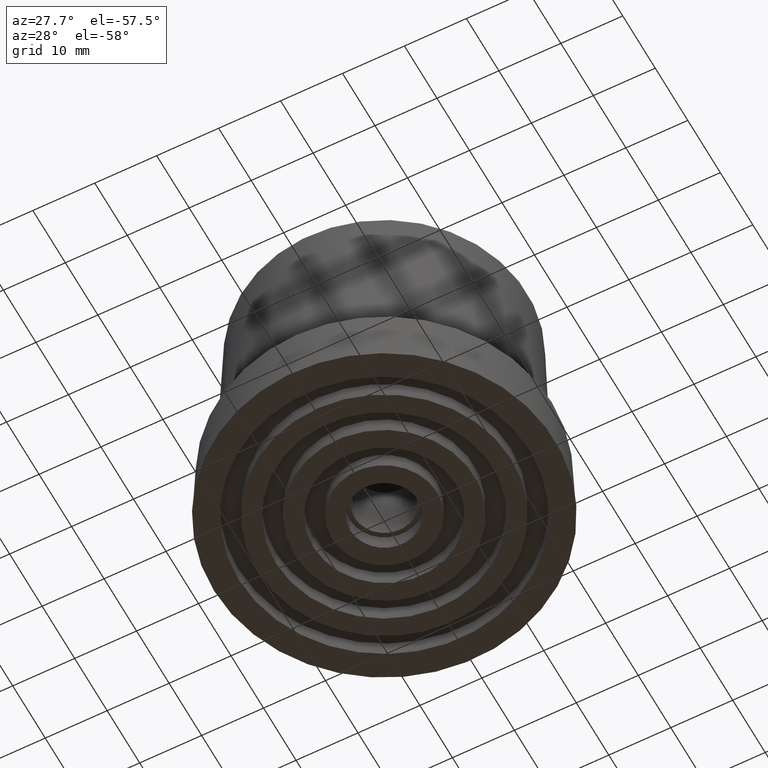
[diagram: clean part render]
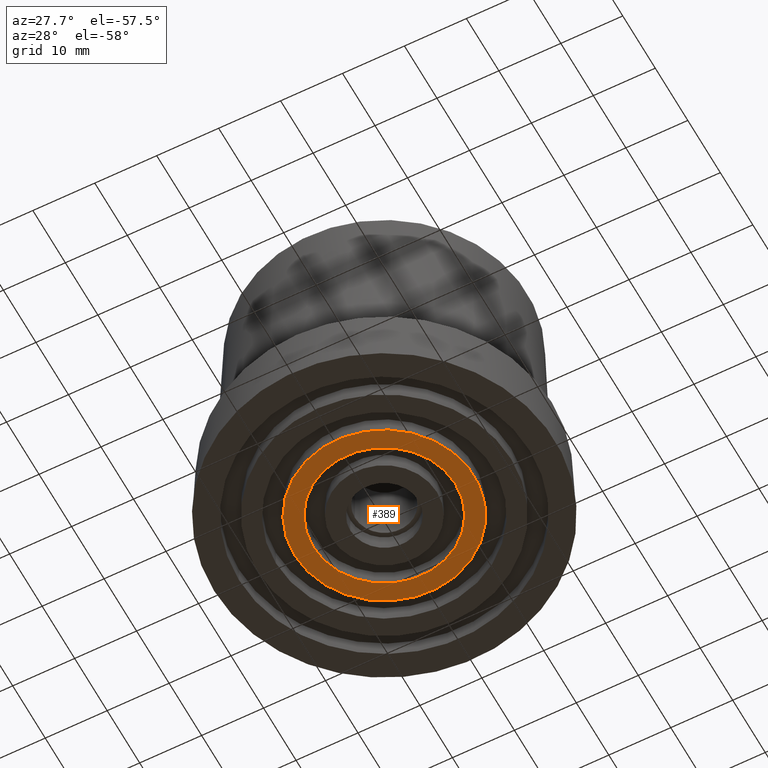
[diagram: same view with one face highlighted and labeled with its STEP entity id]
A machine part, auxiliary view. The second image highlights one B-rep face of the part: STEP entity #389.
In plain terms, the highlighted planar face has unit normal (0, 0, 1).
Its self-contained STEP definition (entity closure, byte-faithful):
#23=PLANE('',#444);
#49=FACE_BOUND('',#135,.T.);
#84=FACE_OUTER_BOUND('',#134,.T.);
#134=EDGE_LOOP('',(#314));
#135=EDGE_LOOP('',(#315));
#186=CIRCLE('',#425,11.5);
#188=CIRCLE('',#429,14.5);
#222=VERTEX_POINT('',#653);
#224=VERTEX_POINT('',#659);
#258=EDGE_CURVE('',#222,#222,#186,.T.);
#260=EDGE_CURVE('',#224,#224,#188,.T.);
#314=ORIENTED_EDGE('',*,*,#260,.T.);
#315=ORIENTED_EDGE('',*,*,#258,.T.);
#389=ADVANCED_FACE('',(#84,#49),#23,.F.);
#425=AXIS2_PLACEMENT_3D('',#654,#510,#511);
#429=AXIS2_PLACEMENT_3D('',#660,#518,#519);
#444=AXIS2_PLACEMENT_3D('',#682,#548,#549);
#510=DIRECTION('center_axis',(0.,0.,1.));
#511=DIRECTION('ref_axis',(1.,0.,0.));
#518=DIRECTION('center_axis',(0.,0.,-1.));
#519=DIRECTION('ref_axis',(1.,0.,0.));
#548=DIRECTION('center_axis',(0.,0.,1.));
#549=DIRECTION('ref_axis',(1.,0.,0.));
#653=CARTESIAN_POINT('',(-11.5,1.40834381901946E-15,0.));
#654=CARTESIAN_POINT('Origin',(0.,0.,0.));
#659=CARTESIAN_POINT('',(-14.5,1.77573785876366E-15,0.));
#660=CARTESIAN_POINT('Origin',(0.,0.,0.));
#682=CARTESIAN_POINT('Origin',(0.,0.,0.));